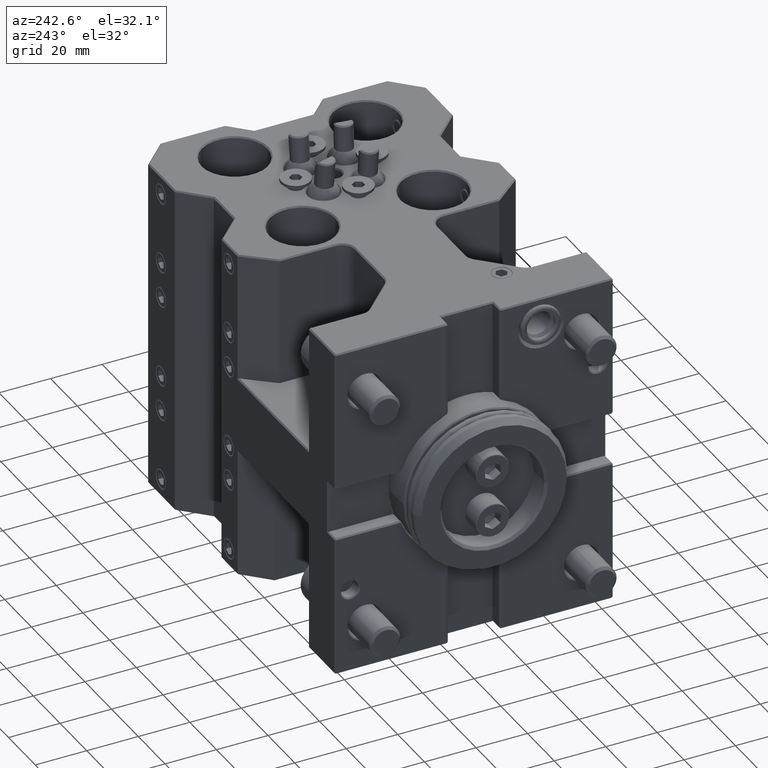
[diagram: clean part render]
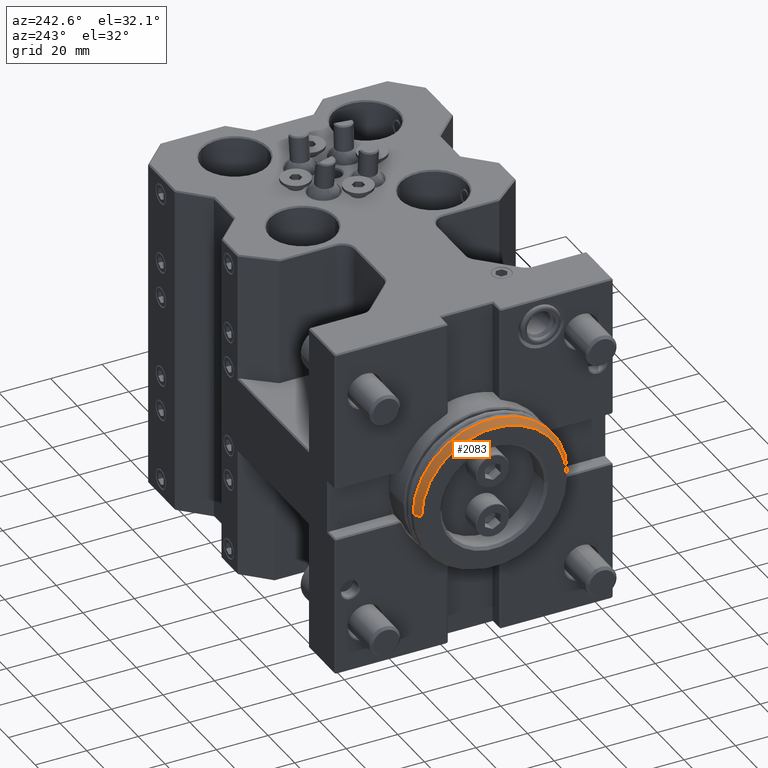
[diagram: same view with one face highlighted and labeled with its STEP entity id]
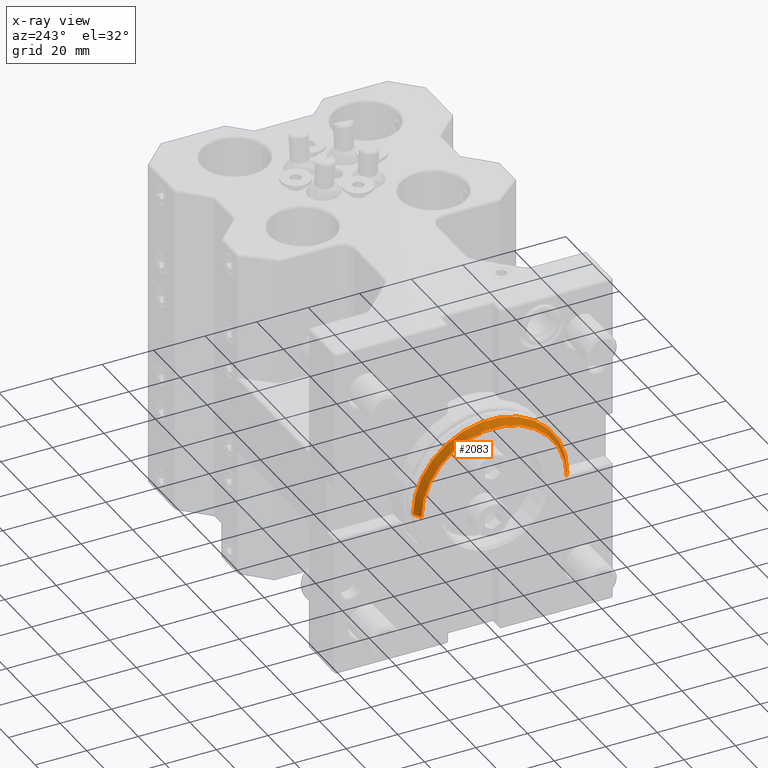
[diagram: x-ray of the same camera — body ghosted, the highlighted face saturated]
A machine part, auxiliary view. The second image highlights one B-rep face of the part: STEP entity #2083.
The next image is the same camera in x-ray: the body ghosted, the highlighted face saturated — about 0% of this face is hidden behind the body in this view.
In plain terms, the highlighted conical surface has half-angle 30 deg.
Its self-contained STEP definition (entity closure, byte-faithful):
#2083 = ADVANCED_FACE ( 'NONE', ( #24463 ), #7282, .T. ) ;
#2487 = CARTESIAN_POINT ( 'NONE',  ( -12.00000000000000000, 4.189777606611760026E-14, 0.000000000000000000 ) ) ;
#2677 = VERTEX_POINT ( 'NONE', #30772 ) ;
#6274 = CIRCLE ( 'NONE', #33236, 28.21794919243110300 ) ;
#6569 = EDGE_CURVE ( 'NONE', #14579, #2677, #45012, .T. ) ;
#6924 = LINE ( 'NONE', #39718, #23943 ) ;
#7282 = CONICAL_SURFACE ( 'NONE', #22679, 29.94999999999999929, 0.5235987755982987046 ) ;
#7771 = DIRECTION ( 'NONE',  ( -3.475239016981917398E-15, -1.000000000000000000, 1.799999999999999903E-14 ) ) ;
#10782 = DIRECTION ( 'NONE',  ( 0.8660254037844404840, 0.4999999999999968359, -9.061232339957365512E-15 ) ) ;
#11845 = CARTESIAN_POINT ( 'NONE',  ( -12.00000000000000000, 4.189777606611760026E-14, 0.000000000000000000 ) ) ;
#12828 = DIRECTION ( 'NONE',  ( -1.000000000000000000, 3.491481338843133355E-15, 0.000000000000000000 ) ) ;
#14579 = VERTEX_POINT ( 'NONE', #37657 ) ;
#20916 = ORIENTED_EDGE ( 'NONE', *, *, #37228, .T. ) ;
#20961 = CARTESIAN_POINT ( 'NONE',  ( -14.99999999999990052, 28.21794919243115274, -5.134781488891348999E-13 ) ) ;
#22679 = AXIS2_PLACEMENT_3D ( 'NONE', #2487, #43947, #7771 ) ;
#23816 = EDGE_CURVE ( 'NONE', #46748, #47207, #6274, .T. ) ;
#23943 = VECTOR ( 'NONE', #10782, 1000.000000000000114 ) ;
#24463 = FACE_OUTER_BOUND ( 'NONE', #38216, .T. ) ;
#24657 = CARTESIAN_POINT ( 'NONE',  ( -15.00000000000000000, 5.237222008264700033E-14, 0.000000000000000000 ) ) ;
#26082 = ORIENTED_EDGE ( 'NONE', *, *, #29353, .F. ) ;
#27543 = DIRECTION ( 'NONE',  ( 3.504125599503183300E-15, 1.000000000000000000, -1.799999999999999903E-14 ) ) ;
#29353 = EDGE_CURVE ( 'NONE', #47207, #2677, #6924, .T. ) ;
#30174 = ORIENTED_EDGE ( 'NONE', *, *, #6569, .T. ) ;
#30772 = CARTESIAN_POINT ( 'NONE',  ( -11.99999999999989697, 29.95000000000004192, -5.412337245047638135E-13 ) ) ;
#30874 = DIRECTION ( 'NONE',  ( 3.475239016981917398E-15, 1.000000000000000000, -1.799999999999999903E-14 ) ) ;
#31473 = CARTESIAN_POINT ( 'NONE',  ( -12.00000000000010481, -29.94999999999996021, 5.412337245047638135E-13 ) ) ;
#33236 = AXIS2_PLACEMENT_3D ( 'NONE', #24657, #12828, #27543 ) ;
#33520 = AXIS2_PLACEMENT_3D ( 'NONE', #11845, #37616, #30874 ) ;
#35157 = VECTOR ( 'NONE', #41839, 999.9999999999998863 ) ;
#37185 = ORIENTED_EDGE ( 'NONE', *, *, #23816, .F. ) ;
#37228 = EDGE_CURVE ( 'NONE', #46748, #14579, #38704, .T. ) ;
#37616 = DIRECTION ( 'NONE',  ( -1.000000000000000000, 3.491481338843133355E-15, 0.000000000000000000 ) ) ;
#37657 = CARTESIAN_POINT ( 'NONE',  ( -12.00000000000010481, -29.94999999999996021, 5.412337245047638135E-13 ) ) ;
#38216 = EDGE_LOOP ( 'NONE', ( #26082, #37185, #20916, #30174 ) ) ;
#38704 = LINE ( 'NONE', #31473, #35157 ) ;
#39718 = CARTESIAN_POINT ( 'NONE',  ( -11.99999999999989697, 29.95000000000004192, -5.412337245047638135E-13 ) ) ;
#41839 = DIRECTION ( 'NONE',  ( 0.8660254037844370423, -0.5000000000000029976, 8.999999999999999516E-15 ) ) ;
#43947 = DIRECTION ( 'NONE',  ( 1.000000000000000000, -3.491481338843133355E-15, 0.000000000000000000 ) ) ;
#44021 = CARTESIAN_POINT ( 'NONE',  ( -15.00000000000009770, -28.21794919243104971, 5.134781488891348999E-13 ) ) ;
#45012 = CIRCLE ( 'NONE', #33520, 29.94999999999999929 ) ;
#46748 = VERTEX_POINT ( 'NONE', #44021 ) ;
#47207 = VERTEX_POINT ( 'NONE', #20961 ) ;